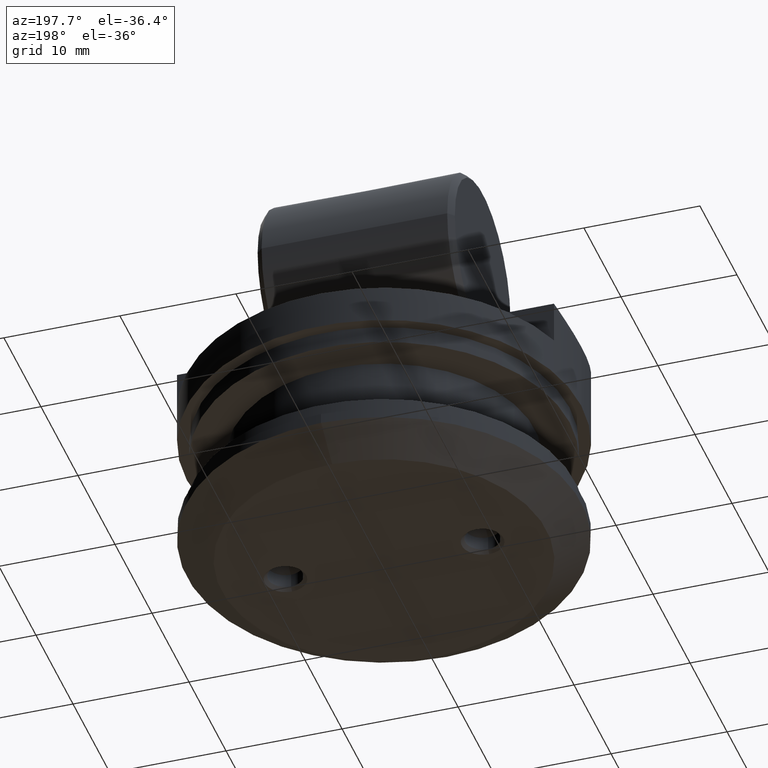
[diagram: clean part render]
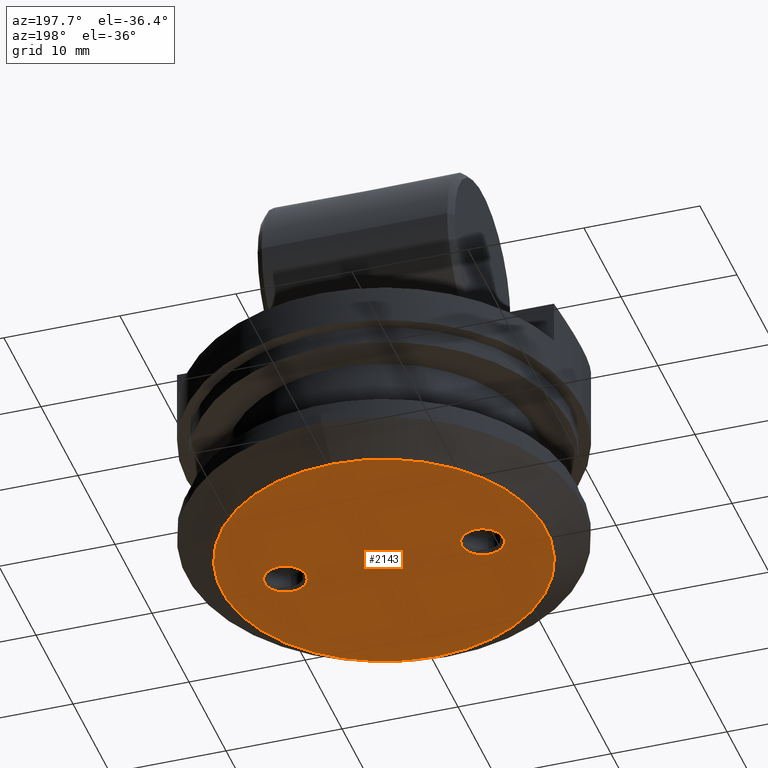
[diagram: same view with one face highlighted and labeled with its STEP entity id]
A machine part, auxiliary view. The second image highlights one B-rep face of the part: STEP entity #2143.
In plain terms, the highlighted planar face has unit normal (0, 0, -1).
Its self-contained STEP definition (entity closure, byte-faithful):
#32 = AXIS2_PLACEMENT_3D ( 'NONE', #135, #5320, #1957 ) ;
#135 = CARTESIAN_POINT ( 'NONE',  ( 0.0000000000000000000, 14.00000000000000000, -11.49999999999999600 ) ) ;
#1002 = CARTESIAN_POINT ( 'NONE',  ( -8.500000000000000000, 1.799999999999992900, -11.50000000000000200 ) ) ;
#1277 = ORIENTED_EDGE ( 'NONE', *, *, #10267, .T. ) ;
#1563 = DIRECTION ( 'NONE',  ( 0.0000000000000000000, 1.000000000000000000, 0.0000000000000000000 ) ) ;
#1957 = DIRECTION ( 'NONE',  ( 0.0000000000000000000, 1.000000000000000000, 3.495458750373898200E-016 ) ) ;
#2143 = ADVANCED_FACE ( 'NONE', ( #21470, #6628, #5293 ), #15794, .T. ) ;
#2791 = VERTEX_POINT ( 'NONE', #19667 ) ;
#3255 = EDGE_CURVE ( 'NONE', #16112, #14941, #5222, .T. ) ;
#3282 = ORIENTED_EDGE ( 'NONE', *, *, #5609, .T. ) ;
#3842 = DIRECTION ( 'NONE',  ( -0.0000000000000000000, 3.495458750373898200E-016, -1.000000000000000000 ) ) ;
#4196 = CARTESIAN_POINT ( 'NONE',  ( 8.500000000000000000, 4.019777562929984500E-015, -11.50000000000000200 ) ) ;
#4287 = EDGE_CURVE ( 'NONE', #20740, #10489, #6744, .T. ) ;
#4445 = DIRECTION ( 'NONE',  ( 0.0000000000000000000, 1.000000000000000000, 0.0000000000000000000 ) ) ;
#4671 = CARTESIAN_POINT ( 'NONE',  ( 0.0000000000000000000, 5.677029878066367300E-016, -11.50000000000000200 ) ) ;
#5083 = CARTESIAN_POINT ( 'NONE',  ( 8.500000000000000000, 4.019777562929984500E-015, -11.50000000000000200 ) ) ;
#5222 = CIRCLE ( 'NONE', #13458, 1.799999999999989400 ) ;
#5293 = FACE_OUTER_BOUND ( 'NONE', #12163, .T. ) ;
#5320 = DIRECTION ( 'NONE',  ( -0.0000000000000000000, 3.495458750373898200E-016, -1.000000000000000000 ) ) ;
#5341 = DIRECTION ( 'NONE',  ( 0.0000000000000000000, -3.495458750373898200E-016, 1.000000000000000000 ) ) ;
#5609 = EDGE_CURVE ( 'NONE', #10489, #20740, #11887, .T. ) ;
#5840 = CARTESIAN_POINT ( 'NONE',  ( 1.898202538678397600E-015, 14.00000000000000000, -11.49999999999999600 ) ) ;
#6239 = EDGE_LOOP ( 'NONE', ( #18165, #7929 ) ) ;
#6402 = DIRECTION ( 'NONE',  ( -0.0000000000000000000, 3.495458750373898200E-016, -1.000000000000000000 ) ) ;
#6506 = AXIS2_PLACEMENT_3D ( 'NONE', #5083, #15330, #1563 ) ;
#6628 = FACE_BOUND ( 'NONE', #6239, .T. ) ;
#6744 = CIRCLE ( 'NONE', #8022, 14.00000000000000000 ) ;
#7665 = DIRECTION ( 'NONE',  ( 0.0000000000000000000, 1.000000000000000000, 0.0000000000000000000 ) ) ;
#7929 = ORIENTED_EDGE ( 'NONE', *, *, #3255, .T. ) ;
#8022 = AXIS2_PLACEMENT_3D ( 'NONE', #4671, #6402, #18463 ) ;
#8206 = AXIS2_PLACEMENT_3D ( 'NONE', #15657, #5341, #20856 ) ;
#8295 = ORIENTED_EDGE ( 'NONE', *, *, #4287, .T. ) ;
#9585 = CIRCLE ( 'NONE', #20670, 1.799999999999989200 ) ;
#9981 = CARTESIAN_POINT ( 'NONE',  ( 8.500000000000000000, 1.799999999999993200, -11.50000000000000200 ) ) ;
#10198 = EDGE_LOOP ( 'NONE', ( #13179, #1277 ) ) ;
#10267 = EDGE_CURVE ( 'NONE', #2791, #12708, #9585, .T. ) ;
#10489 = VERTEX_POINT ( 'NONE', #20697 ) ;
#10692 = AXIS2_PLACEMENT_3D ( 'NONE', #15742, #3842, #20943 ) ;
#11887 = CIRCLE ( 'NONE', #10692, 14.00000000000000000 ) ;
#12163 = EDGE_LOOP ( 'NONE', ( #3282, #8295 ) ) ;
#12708 = VERTEX_POINT ( 'NONE', #1002 ) ;
#13179 = ORIENTED_EDGE ( 'NONE', *, *, #17425, .T. ) ;
#13458 = AXIS2_PLACEMENT_3D ( 'NONE', #4196, #16250, #7665 ) ;
#13531 = CIRCLE ( 'NONE', #6506, 1.799999999999989400 ) ;
#14941 = VERTEX_POINT ( 'NONE', #9981 ) ;
#15330 = DIRECTION ( 'NONE',  ( 0.0000000000000000000, -3.495458750373898200E-016, 1.000000000000000000 ) ) ;
#15555 = CARTESIAN_POINT ( 'NONE',  ( 8.500000000000000000, -1.799999999999986300, -11.50000000000000200 ) ) ;
#15657 = CARTESIAN_POINT ( 'NONE',  ( -8.500000000000000000, 4.019777562929984500E-015, -11.50000000000000200 ) ) ;
#15742 = CARTESIAN_POINT ( 'NONE',  ( 0.0000000000000000000, 5.677029878066367300E-016, -11.50000000000000200 ) ) ;
#15794 = PLANE ( 'NONE',  #32 ) ;
#16112 = VERTEX_POINT ( 'NONE', #15555 ) ;
#16250 = DIRECTION ( 'NONE',  ( 0.0000000000000000000, -3.495458750373898200E-016, 1.000000000000000000 ) ) ;
#17425 = EDGE_CURVE ( 'NONE', #12708, #2791, #18897, .T. ) ;
#18165 = ORIENTED_EDGE ( 'NONE', *, *, #22123, .T. ) ;
#18463 = DIRECTION ( 'NONE',  ( 0.0000000000000000000, 1.000000000000000000, 3.717264591378872200E-016 ) ) ;
#18897 = CIRCLE ( 'NONE', #8206, 1.799999999999989200 ) ;
#19667 = CARTESIAN_POINT ( 'NONE',  ( -8.500000000000000000, -1.799999999999986100, -11.50000000000000200 ) ) ;
#19890 = CARTESIAN_POINT ( 'NONE',  ( -8.500000000000000000, 4.019777562929984500E-015, -11.50000000000000200 ) ) ;
#20031 = DIRECTION ( 'NONE',  ( 0.0000000000000000000, -3.495458750373898200E-016, 1.000000000000000000 ) ) ;
#20670 = AXIS2_PLACEMENT_3D ( 'NONE', #19890, #20031, #4445 ) ;
#20697 = CARTESIAN_POINT ( 'NONE',  ( 0.0000000000000000000, -14.00000000000000000, -11.50000000000000700 ) ) ;
#20740 = VERTEX_POINT ( 'NONE', #5840 ) ;
#20856 = DIRECTION ( 'NONE',  ( 0.0000000000000000000, 1.000000000000000000, 0.0000000000000000000 ) ) ;
#20943 = DIRECTION ( 'NONE',  ( 0.0000000000000000000, 1.000000000000000000, 3.717264591378872200E-016 ) ) ;
#21470 = FACE_BOUND ( 'NONE', #10198, .T. ) ;
#22123 = EDGE_CURVE ( 'NONE', #14941, #16112, #13531, .T. ) ;